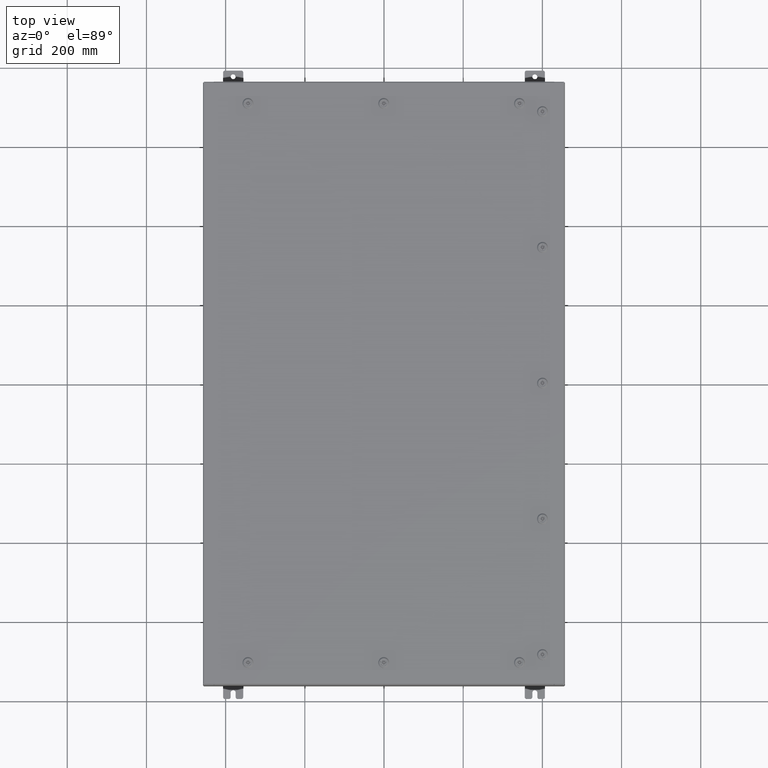
[diagram: clean part render]
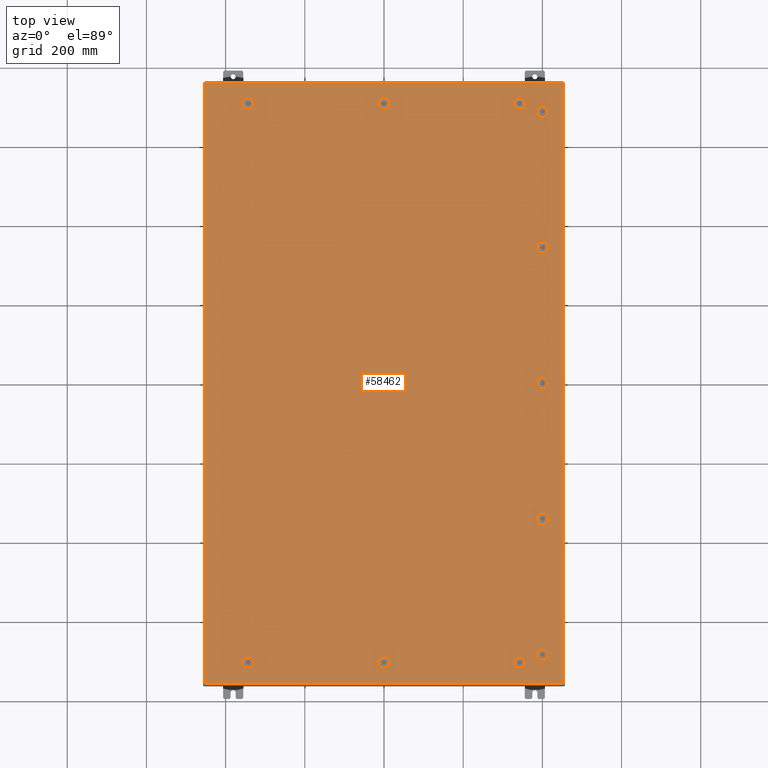
[diagram: same view with one face highlighted and labeled with its STEP entity id]
A machine part, top view. The second image highlights one B-rep face of the part: STEP entity #58462.
In plain terms, the highlighted planar face has unit normal (0, 0, -1).
Its self-contained STEP definition (entity closure, byte-faithful):
#141 = CARTESIAN_POINT ( 'NONE',  ( 13.49999999999998600, 27.78780000000000100, -9.426999614876453700E-014 ) ) ;
#516 = EDGE_CURVE ( 'NONE', #11564, #12385, #55682, .T. ) ;
#768 = CARTESIAN_POINT ( 'NONE',  ( 13.49999999999998600, 27.78780000000000100, -9.426999614876453700E-014 ) ) ;
#948 = DIRECTION ( 'NONE',  ( -0.0000000000000000000, -6.982962677686266700E-015, 1.000000000000000000 ) ) ;
#963 = LINE ( 'NONE', #50926, #13559 ) ;
#1364 = CARTESIAN_POINT ( 'NONE',  ( 17.84979999999999800, 29.84980000000001300, 1.946441695485787500E-015 ) ) ;
#1552 = ORIENTED_EDGE ( 'NONE', *, *, #1756, .F. ) ;
#1683 = ORIENTED_EDGE ( 'NONE', *, *, #5998, .F. ) ;
#1756 = EDGE_CURVE ( 'NONE', #5480, #24326, #29669, .T. ) ;
#1811 = ORIENTED_EDGE ( 'NONE', *, *, #65121, .F. ) ;
#1848 = EDGE_CURVE ( 'NONE', #45824, #26186, #26349, .T. ) ;
#2200 = DIRECTION ( 'NONE',  ( 1.000000000000000000, -0.0000000000000000000, -0.0000000000000000000 ) ) ;
#2365 = CIRCLE ( 'NONE', #53289, 0.4424999999999961700 ) ;
#2536 = CARTESIAN_POINT ( 'NONE',  ( 0.4425000000000125500, 27.78780000000000100, 0.0000000000000000000 ) ) ;
#2543 = VERTEX_POINT ( 'NONE', #41104 ) ;
#2572 = ORIENTED_EDGE ( 'NONE', *, *, #31101, .F. ) ;
#2574 = AXIS2_PLACEMENT_3D ( 'NONE', #12482, #49832, #17851 ) ;
#2691 = CARTESIAN_POINT ( 'NONE',  ( -13.30054762473209400, 28.18279999999999300, 0.0000000000000000000 ) ) ;
#3348 = CARTESIAN_POINT ( 'NONE',  ( 15.39280000000001900, 13.69945237526790600, 0.0000000000000000000 ) ) ;
#3615 = VERTEX_POINT ( 'NONE', #30843 ) ;
#3694 = CARTESIAN_POINT ( 'NONE',  ( -13.30054762473210200, 27.39280000000000500, 0.0000000000000000000 ) ) ;
#3870 = DIRECTION ( 'NONE',  ( -1.000000000000000000, 0.0000000000000000000, 6.982962677686269100E-015 ) ) ;
#4245 = CARTESIAN_POINT ( 'NONE',  ( 15.39280000000002200, -27.19945237526790300, -1.899327607900008200E-013 ) ) ;
#4270 = DIRECTION ( 'NONE',  ( 0.0000000000000000000, 0.0000000000000000000, 1.000000000000000000 ) ) ;
#4353 = VERTEX_POINT ( 'NONE', #41977 ) ;
#4393 = EDGE_CURVE ( 'NONE', #55439, #43079, #9466, .T. ) ;
#4452 = ORIENTED_EDGE ( 'NONE', *, *, #48904, .F. ) ;
#4513 = DIRECTION ( 'NONE',  ( 1.000000000000000000, 0.0000000000000000000, 0.0000000000000000000 ) ) ;
#4755 = VERTEX_POINT ( 'NONE', #66689 ) ;
#4907 = CARTESIAN_POINT ( 'NONE',  ( 16.18280000000000700, 27.19945237526789600, 0.0000000000000000000 ) ) ;
#5119 = ORIENTED_EDGE ( 'NONE', *, *, #37079, .F. ) ;
#5480 = VERTEX_POINT ( 'NONE', #5520 ) ;
#5487 = DIRECTION ( 'NONE',  ( -1.000000000000000000, 0.0000000000000000000, 6.982962677686270700E-015 ) ) ;
#5520 = CARTESIAN_POINT ( 'NONE',  ( 16.18280000000000700, 13.30054762473213300, 0.0000000000000000000 ) ) ;
#5542 = CARTESIAN_POINT ( 'NONE',  ( 13.30054762473210400, -27.39280000000001500, -1.564962406004356200E-013 ) ) ;
#5666 = LINE ( 'NONE', #16079, #32435 ) ;
#5983 = EDGE_CURVE ( 'NONE', #21966, #4353, #37830, .T. ) ;
#5988 = EDGE_LOOP ( 'NONE', ( #1552, #20741, #18476, #46985 ) ) ;
#5998 = EDGE_CURVE ( 'NONE', #58013, #48141, #50376, .T. ) ;
#6110 = DIRECTION ( 'NONE',  ( -1.000000000000000000, 0.0000000000000000000, 6.982962677686269100E-015 ) ) ;
#6353 = VECTOR ( 'NONE', #9092, 39.37007874015748100 ) ;
#6401 = DIRECTION ( 'NONE',  ( 5.478697338139280000E-015, 1.000000000000000000, 6.982962677686382700E-015 ) ) ;
#6536 = CARTESIAN_POINT ( 'NONE',  ( 16.18280000000000700, 27.19945237526789600, 0.0000000000000000000 ) ) ;
#6731 = ORIENTED_EDGE ( 'NONE', *, *, #16968, .F. ) ;
#7058 = EDGE_CURVE ( 'NONE', #29871, #23255, #963, .T. ) ;
#7089 = CIRCLE ( 'NONE', #50129, 0.4424999999999961700 ) ;
#7203 = VECTOR ( 'NONE', #62915, 39.37007874015748100 ) ;
#7344 = LINE ( 'NONE', #5542, #34072 ) ;
#7467 = ORIENTED_EDGE ( 'NONE', *, *, #5983, .F. ) ;
#7622 = ORIENTED_EDGE ( 'NONE', *, *, #34510, .F. ) ;
#7754 = ORIENTED_EDGE ( 'NONE', *, *, #52083, .F. ) ;
#7907 = ORIENTED_EDGE ( 'NONE', *, *, #29726, .F. ) ;
#8002 = VERTEX_POINT ( 'NONE', #68835 ) ;
#8090 = CIRCLE ( 'NONE', #32320, 0.4424999999999983400 ) ;
#8276 = LINE ( 'NONE', #4245, #63506 ) ;
#8304 = DIRECTION ( 'NONE',  ( -6.982962677686266700E-015, -6.982962677686266700E-015, 1.000000000000000000 ) ) ;
#8493 = DIRECTION ( 'NONE',  ( -0.0000000000000000000, -6.982962677686266700E-015, 1.000000000000000000 ) ) ;
#8583 = VECTOR ( 'NONE', #40750, 39.37007874015748100 ) ;
#8667 = VERTEX_POINT ( 'NONE', #30870 ) ;
#9092 = DIRECTION ( 'NONE',  ( 1.000000000000000000, -0.0000000000000000000, -0.0000000000000000000 ) ) ;
#9103 = VECTOR ( 'NONE', #55366, 39.37007874015748100 ) ;
#9451 = CARTESIAN_POINT ( 'NONE',  ( 16.18280000000000700, -13.69945237526790100, -9.566276464123617700E-014 ) ) ;
#9466 = CIRCLE ( 'NONE', #51945, 0.4424999999999961700 ) ;
#9536 = EDGE_LOOP ( 'NONE', ( #41189, #68259, #15319, #29320 ) ) ;
#9702 = DIRECTION ( 'NONE',  ( 0.0000000000000000000, 0.0000000000000000000, 1.000000000000000000 ) ) ;
#9759 = CARTESIAN_POINT ( 'NONE',  ( -13.69945237526786900, -28.18280000000001100, 0.0000000000000000000 ) ) ;
#9873 = VECTOR ( 'NONE', #58131, 39.37007874015748100 ) ;
#10257 = DIRECTION ( 'NONE',  ( -0.0000000000000000000, -6.982962677686266700E-015, 1.000000000000000000 ) ) ;
#10384 = LINE ( 'NONE', #66224, #65506 ) ;
#10425 = ORIENTED_EDGE ( 'NONE', *, *, #19007, .F. ) ;
#10584 = FACE_OUTER_BOUND ( 'NONE', #40385, .T. ) ;
#10681 = CARTESIAN_POINT ( 'NONE',  ( 1.529834876451987200E-014, 27.78780000000000100, 0.0000000000000000000 ) ) ;
#10709 = VECTOR ( 'NONE', #23056, 39.37007874015748100 ) ;
#10911 = DIRECTION ( 'NONE',  ( 0.0000000000000000000, 0.0000000000000000000, 1.000000000000000000 ) ) ;
#10937 = VERTEX_POINT ( 'NONE', #48306 ) ;
#10951 = DIRECTION ( 'NONE',  ( 0.0000000000000000000, 0.0000000000000000000, 1.000000000000000000 ) ) ;
#11117 = CARTESIAN_POINT ( 'NONE',  ( 13.49999999999998600, -27.78780000000000800, -1.578617423656501800E-013 ) ) ;
#11130 = DIRECTION ( 'NONE',  ( -1.000000000000000000, 1.095739467627832000E-014, 0.0000000000000000000 ) ) ;
#11564 = VERTEX_POINT ( 'NONE', #34966 ) ;
#11601 = CARTESIAN_POINT ( 'NONE',  ( -13.69945237526786900, 27.39280000000000500, 0.0000000000000000000 ) ) ;
#11889 = VERTEX_POINT ( 'NONE', #26563 ) ;
#11904 = CARTESIAN_POINT ( 'NONE',  ( -0.1994523752678657400, -28.18280000000000400, 0.0000000000000000000 ) ) ;
#11960 = DIRECTION ( 'NONE',  ( -5.478697338139280000E-015, 1.000000000000000000, -0.0000000000000000000 ) ) ;
#11962 = EDGE_CURVE ( 'NONE', #45411, #24345, #16677, .T. ) ;
#12094 = CIRCLE ( 'NONE', #52474, 0.4424999999999972800 ) ;
#12129 = VECTOR ( 'NONE', #39305, 39.37007874015748100 ) ;
#12228 = FACE_BOUND ( 'NONE', #42749, .T. ) ;
#12385 = VERTEX_POINT ( 'NONE', #16155 ) ;
#12482 = CARTESIAN_POINT ( 'NONE',  ( 15.78780000000001500, -27.00000000000001400, -1.885399922975292500E-013 ) ) ;
#12508 = PLANE ( 'NONE',  #40950 ) ;
#12927 = ORIENTED_EDGE ( 'NONE', *, *, #4393, .F. ) ;
#13056 = ORIENTED_EDGE ( 'NONE', *, *, #26906, .T. ) ;
#13559 = VECTOR ( 'NONE', #13590, 39.37007874015748100 ) ;
#13590 = DIRECTION ( 'NONE',  ( 1.000000000000000000, 0.0000000000000000000, -6.982962677686306200E-015 ) ) ;
#13934 = FACE_BOUND ( 'NONE', #22872, .T. ) ;
#13943 = EDGE_CURVE ( 'NONE', #27118, #55439, #7344, .T. ) ;
#14040 = CARTESIAN_POINT ( 'NONE',  ( 13.69945237526786900, 27.39280000000000500, -9.566276464123603800E-014 ) ) ;
#14188 = CARTESIAN_POINT ( 'NONE',  ( 15.78780000000000600, 1.529834876451990400E-014, 0.0000000000000000000 ) ) ;
#14227 = CARTESIAN_POINT ( 'NONE',  ( 13.49999999999998600, -27.78780000000000800, -1.578617423656501800E-013 ) ) ;
#14671 = AXIS2_PLACEMENT_3D ( 'NONE', #40505, #8493, #45886 ) ;
#14789 = EDGE_CURVE ( 'NONE', #33963, #29672, #67546, .T. ) ;
#15261 = CARTESIAN_POINT ( 'NONE',  ( -13.49999999999998600, -27.78780000000001500, -2.521317385144146900E-013 ) ) ;
#15319 = ORIENTED_EDGE ( 'NONE', *, *, #31916, .F. ) ;
#15335 = VECTOR ( 'NONE', #38542, 39.37007874015748100 ) ;
#15464 = DIRECTION ( 'NONE',  ( 0.0000000000000000000, 0.0000000000000000000, 1.000000000000000000 ) ) ;
#15504 = VERTEX_POINT ( 'NONE', #28800 ) ;
#15576 = CARTESIAN_POINT ( 'NONE',  ( -13.69945237526787100, -27.39280000000001900, -2.493734682567286400E-013 ) ) ;
#15599 = DIRECTION ( 'NONE',  ( -0.0000000000000000000, -6.982962677686266700E-015, 1.000000000000000000 ) ) ;
#15616 = ORIENTED_EDGE ( 'NONE', *, *, #57390, .F. ) ;
#15647 = CARTESIAN_POINT ( 'NONE',  ( -13.49999999999998600, 27.78780000000000100, 0.0000000000000000000 ) ) ;
#15701 = AXIS2_PLACEMENT_3D ( 'NONE', #16127, #53522, #21512 ) ;
#16013 = DIRECTION ( 'NONE',  ( 1.000000000000000000, 0.0000000000000000000, 0.0000000000000000000 ) ) ;
#16079 = CARTESIAN_POINT ( 'NONE',  ( 0.1994523752679067700, -28.18279999999999300, -2.548900087721007400E-013 ) ) ;
#16127 = CARTESIAN_POINT ( 'NONE',  ( 15.78780000000001000, 13.50000000000001800, 0.0000000000000000000 ) ) ;
#16155 = CARTESIAN_POINT ( 'NONE',  ( 17.84979999999999800, -29.84979999999998800, -2.048885995248197400E-016 ) ) ;
#16490 = DIRECTION ( 'NONE',  ( 1.000000000000000000, 0.0000000000000000000, 6.982962677686304600E-015 ) ) ;
#16677 = LINE ( 'NONE', #64616, #43417 ) ;
#16761 = LINE ( 'NONE', #64987, #59421 ) ;
#16968 = EDGE_CURVE ( 'NONE', #17480, #45411, #25579, .T. ) ;
#17101 = VECTOR ( 'NONE', #20512, 39.37007874015748100 ) ;
#17480 = VERTEX_POINT ( 'NONE', #40299 ) ;
#17503 = CARTESIAN_POINT ( 'NONE',  ( -13.69945237526786700, 28.18280000000000000, 0.0000000000000000000 ) ) ;
#17644 = CARTESIAN_POINT ( 'NONE',  ( -13.05749999999999000, -27.78780000000001500, -2.521317385144146900E-013 ) ) ;
#17851 = DIRECTION ( 'NONE',  ( 0.0000000000000000000, 1.000000000000000000, 6.982962677686270700E-015 ) ) ;
#17861 = VERTEX_POINT ( 'NONE', #57259 ) ;
#17873 = DIRECTION ( 'NONE',  ( 0.0000000000000000000, 0.0000000000000000000, -1.000000000000000000 ) ) ;
#18035 = EDGE_CURVE ( 'NONE', #48141, #41227, #21428, .T. ) ;
#18104 = LINE ( 'NONE', #36230, #7203 ) ;
#18135 = ORIENTED_EDGE ( 'NONE', *, *, #18035, .F. ) ;
#18163 = CARTESIAN_POINT ( 'NONE',  ( 13.69945237526787100, -27.39280000000001500, 0.0000000000000000000 ) ) ;
#18476 = ORIENTED_EDGE ( 'NONE', *, *, #29275, .F. ) ;
#18873 = AXIS2_PLACEMENT_3D ( 'NONE', #47456, #15464, #52850 ) ;
#19007 = EDGE_CURVE ( 'NONE', #23255, #3615, #7089, .T. ) ;
#19504 = EDGE_CURVE ( 'NONE', #27933, #11564, #32943, .T. ) ;
#19548 = DIRECTION ( 'NONE',  ( 1.000000000000000000, 0.0000000000000000000, 0.0000000000000000000 ) ) ;
#19585 = DIRECTION ( 'NONE',  ( 1.000000000000000000, 0.0000000000000000000, 6.982962677686270700E-015 ) ) ;
#19724 = EDGE_CURVE ( 'NONE', #30430, #43752, #12094, .T. ) ;
#20014 = CARTESIAN_POINT ( 'NONE',  ( -13.49999999999998600, -27.78780000000001500, -2.521317385144146900E-013 ) ) ;
#20397 = DIRECTION ( 'NONE',  ( -1.095739467627836100E-014, -1.000000000000000000, 0.0000000000000000000 ) ) ;
#20512 = DIRECTION ( 'NONE',  ( 0.0000000000000000000, -1.000000000000000000, 0.0000000000000000000 ) ) ;
#20654 = AXIS2_PLACEMENT_3D ( 'NONE', #20826, #58190, #26162 ) ;
#20662 = DIRECTION ( 'NONE',  ( 0.0000000000000000000, 1.000000000000000000, 6.982962677686270700E-015 ) ) ;
#20720 = EDGE_CURVE ( 'NONE', #4353, #30430, #10384, .T. ) ;
#20741 = ORIENTED_EDGE ( 'NONE', *, *, #52058, .F. ) ;
#20826 = CARTESIAN_POINT ( 'NONE',  ( -13.49999999999998600, -27.78780000000001500, -2.521317385144146900E-013 ) ) ;
#20997 = LINE ( 'NONE', #43801, #35145 ) ;
#21019 = DIRECTION ( 'NONE',  ( 1.000000000000000000, 0.0000000000000000000, 0.0000000000000000000 ) ) ;
#21043 = VERTEX_POINT ( 'NONE', #9451 ) ;
#21055 = EDGE_CURVE ( 'NONE', #24326, #8667, #25376, .T. ) ;
#21090 = EDGE_LOOP ( 'NONE', ( #57922, #44069, #10425, #53357, #15616 ) ) ;
#21371 = EDGE_CURVE ( 'NONE', #4755, #56365, #59635, .T. ) ;
#21401 = CIRCLE ( 'NONE', #27008, 0.4424999999999983400 ) ;
#21428 = CIRCLE ( 'NONE', #20654, 0.4424999999999983400 ) ;
#21477 = DIRECTION ( 'NONE',  ( -1.000000000000000000, -0.0000000000000000000, -0.0000000000000000000 ) ) ;
#21512 = DIRECTION ( 'NONE',  ( 1.000000000000000000, 0.0000000000000000000, 0.0000000000000000000 ) ) ;
#21662 = ORIENTED_EDGE ( 'NONE', *, *, #62904, .F. ) ;
#21732 = CARTESIAN_POINT ( 'NONE',  ( 15.78780000000001000, 27.00000000000001400, 0.0000000000000000000 ) ) ;
#21844 = ORIENTED_EDGE ( 'NONE', *, *, #20720, .F. ) ;
#21871 = CARTESIAN_POINT ( 'NONE',  ( 17.84979999999999800, -29.84979999999998800, -2.048885995248197400E-016 ) ) ;
#21966 = VERTEX_POINT ( 'NONE', #48768 ) ;
#22612 = VERTEX_POINT ( 'NONE', #11904 ) ;
#22764 = ORIENTED_EDGE ( 'NONE', *, *, #53057, .F. ) ;
#22872 = EDGE_LOOP ( 'NONE', ( #21662, #7754, #61754, #40533 ) ) ;
#23056 = DIRECTION ( 'NONE',  ( 1.095739467627838000E-014, -1.000000000000000000, -6.982962677686269100E-015 ) ) ;
#23255 = VERTEX_POINT ( 'NONE', #14040 ) ;
#23379 = VECTOR ( 'NONE', #59286, 39.37007874015748100 ) ;
#23537 = EDGE_CURVE ( 'NONE', #43079, #45280, #24897, .T. ) ;
#23655 = CARTESIAN_POINT ( 'NONE',  ( 15.78780000000001300, -13.50000000000001800, -9.426999614876466400E-014 ) ) ;
#23781 = VERTEX_POINT ( 'NONE', #56101 ) ;
#24035 = CIRCLE ( 'NONE', #45671, 0.4424999999999983400 ) ;
#24190 = AXIS2_PLACEMENT_3D ( 'NONE', #20014, #57374, #25346 ) ;
#24258 = ORIENTED_EDGE ( 'NONE', *, *, #37177, .F. ) ;
#24326 = VERTEX_POINT ( 'NONE', #28674 ) ;
#24345 = VERTEX_POINT ( 'NONE', #17503 ) ;
#24419 = LINE ( 'NONE', #6536, #51154 ) ;
#24759 = FACE_BOUND ( 'NONE', #44302, .T. ) ;
#24897 = LINE ( 'NONE', #59203, #65851 ) ;
#25346 = DIRECTION ( 'NONE',  ( 0.0000000000000000000, 1.000000000000000000, 6.982962677686270700E-015 ) ) ;
#25376 = CIRCLE ( 'NONE', #50656, 0.4424999999999961700 ) ;
#25416 = CARTESIAN_POINT ( 'NONE',  ( -13.30054762473210400, -27.39280000000001900, -2.493734682567286900E-013 ) ) ;
#25579 = CIRCLE ( 'NONE', #38890, 0.4424999999999983400 ) ;
#25631 = EDGE_LOOP ( 'NONE', ( #47943, #65378, #38879, #55371 ) ) ;
#25665 = EDGE_LOOP ( 'NONE', ( #35763, #60316, #22764, #36299 ) ) ;
#25756 = CARTESIAN_POINT ( 'NONE',  ( -0.1994523752678689600, -27.39280000000000500, -2.493734682567286400E-013 ) ) ;
#26097 = CARTESIAN_POINT ( 'NONE',  ( -13.30054762473209500, -28.18280000000000700, -2.548900087721007400E-013 ) ) ;
#26162 = DIRECTION ( 'NONE',  ( 0.0000000000000000000, 1.000000000000000000, 6.982962677686270700E-015 ) ) ;
#26186 = VERTEX_POINT ( 'NONE', #52762 ) ;
#26349 = LINE ( 'NONE', #55243, #12129 ) ;
#26440 = FACE_BOUND ( 'NONE', #45830, .T. ) ;
#26563 = CARTESIAN_POINT ( 'NONE',  ( 15.39280000000001900, -26.80054762473213300, 0.0000000000000000000 ) ) ;
#26799 = ORIENTED_EDGE ( 'NONE', *, *, #13943, .F. ) ;
#26858 = AXIS2_PLACEMENT_3D ( 'NONE', #15261, #52654, #20662 ) ;
#26906 = EDGE_CURVE ( 'NONE', #52280, #27933, #47218, .T. ) ;
#27008 = AXIS2_PLACEMENT_3D ( 'NONE', #42235, #10257, #47595 ) ;
#27088 = DIRECTION ( 'NONE',  ( 1.000000000000000000, 0.0000000000000000000, 0.0000000000000000000 ) ) ;
#27118 = VERTEX_POINT ( 'NONE', #18163 ) ;
#27145 = CARTESIAN_POINT ( 'NONE',  ( 15.39280000000002100, -13.69945237526790600, -9.566276464123621500E-014 ) ) ;
#27169 = DIRECTION ( 'NONE',  ( 1.000000000000000000, -1.095739467627832000E-014, 6.982962677686152300E-015 ) ) ;
#27375 = LINE ( 'NONE', #57772, #66686 ) ;
#27561 = VERTEX_POINT ( 'NONE', #17644 ) ;
#27678 = CIRCLE ( 'NONE', #43356, 0.4424999999999961700 ) ;
#27770 = EDGE_CURVE ( 'NONE', #36718, #11889, #35539, .T. ) ;
#27809 = CARTESIAN_POINT ( 'NONE',  ( 0.1994523752678995500, -27.39280000000000500, -2.493734682567286900E-013 ) ) ;
#27933 = VERTEX_POINT ( 'NONE', #57121 ) ;
#28613 = CARTESIAN_POINT ( 'NONE',  ( 15.78780000000001300, -13.50000000000001800, -9.426999614876466400E-014 ) ) ;
#28674 = CARTESIAN_POINT ( 'NONE',  ( 16.18280000000000700, 13.69945237526790100, 0.0000000000000000000 ) ) ;
#28800 = CARTESIAN_POINT ( 'NONE',  ( -13.30054762473209500, -28.18280000000000700, -2.548900087721007400E-013 ) ) ;
#28824 = CARTESIAN_POINT ( 'NONE',  ( -17.84979999999999800, -29.84979999999999500, 1.946441695485787500E-015 ) ) ;
#28919 = VECTOR ( 'NONE', #60889, 39.37007874015748100 ) ;
#28985 = ORIENTED_EDGE ( 'NONE', *, *, #19724, .F. ) ;
#29006 = DIRECTION ( 'NONE',  ( 0.0000000000000000000, 1.000000000000000000, 6.982962677686270700E-015 ) ) ;
#29039 = CARTESIAN_POINT ( 'NONE',  ( 0.1994523752679054600, -28.18279999999999300, -2.548900087721007400E-013 ) ) ;
#29063 = CARTESIAN_POINT ( 'NONE',  ( 0.4425000000000125500, -27.78780000000000100, -2.521317385144146900E-013 ) ) ;
#29275 = EDGE_CURVE ( 'NONE', #8667, #31118, #37006, .T. ) ;
#29320 = ORIENTED_EDGE ( 'NONE', *, *, #66745, .F. ) ;
#29431 = EDGE_CURVE ( 'NONE', #26186, #55943, #47862, .T. ) ;
#29598 = ORIENTED_EDGE ( 'NONE', *, *, #56286, .F. ) ;
#29669 = LINE ( 'NONE', #38626, #43875 ) ;
#29672 = VERTEX_POINT ( 'NONE', #27145 ) ;
#29726 = EDGE_CURVE ( 'NONE', #56365, #22612, #37789, .T. ) ;
#29865 = CARTESIAN_POINT ( 'NONE',  ( 13.30054762473209400, 28.18279999999999300, -9.287722765629296100E-014 ) ) ;
#29871 = VERTEX_POINT ( 'NONE', #49289 ) ;
#30119 = CARTESIAN_POINT ( 'NONE',  ( 15.78780000000001000, 27.00000000000001400, 0.0000000000000000000 ) ) ;
#30313 = ORIENTED_EDGE ( 'NONE', *, *, #11962, .F. ) ;
#30430 = VERTEX_POINT ( 'NONE', #68779 ) ;
#30569 = CIRCLE ( 'NONE', #48481, 0.4424999999999983400 ) ;
#30843 = CARTESIAN_POINT ( 'NONE',  ( 13.94249999999998300, 27.78780000000000100, -9.735995713364067600E-014 ) ) ;
#30870 = CARTESIAN_POINT ( 'NONE',  ( 15.39280000000001900, 13.69945237526790600, 0.0000000000000000000 ) ) ;
#31101 = EDGE_CURVE ( 'NONE', #24345, #59545, #27678, .T. ) ;
#31118 = VERTEX_POINT ( 'NONE', #36869 ) ;
#31415 = EDGE_CURVE ( 'NONE', #58949, #27118, #60299, .T. ) ;
#31916 = EDGE_CURVE ( 'NONE', #21043, #50128, #16761, .T. ) ;
#32191 = DIRECTION ( 'NONE',  ( -1.000000000000000000, -0.0000000000000000000, -6.982962677686265900E-015 ) ) ;
#32320 = AXIS2_PLACEMENT_3D ( 'NONE', #14188, #51539, #19548 ) ;
#32435 = VECTOR ( 'NONE', #42700, 39.37007874015748100 ) ;
#32890 = CIRCLE ( 'NONE', #26858, 0.4424999999999983400 ) ;
#32930 = CARTESIAN_POINT ( 'NONE',  ( 1.529834876451987200E-014, -27.78780000000000100, -2.521317385144146900E-013 ) ) ;
#32943 = LINE ( 'NONE', #36351, #17101 ) ;
#33255 = CARTESIAN_POINT ( 'NONE',  ( 0.0000000000000000000, 0.0000000000000000000, 0.0000000000000000000 ) ) ;
#33506 = AXIS2_PLACEMENT_3D ( 'NONE', #21732, #59129, #27088 ) ;
#33754 = ORIENTED_EDGE ( 'NONE', *, *, #65802, .F. ) ;
#33821 = EDGE_CURVE ( 'NONE', #17861, #66527, #43362, .T. ) ;
#33963 = VERTEX_POINT ( 'NONE', #39289 ) ;
#33980 = DIRECTION ( 'NONE',  ( 0.0000000000000000000, 1.000000000000000000, 6.982962677686269100E-015 ) ) ;
#34072 = VECTOR ( 'NONE', #32191, 39.37007874015748100 ) ;
#34479 = AXIS2_PLACEMENT_3D ( 'NONE', #42862, #10911, #48246 ) ;
#34510 = EDGE_CURVE ( 'NONE', #22612, #50641, #5666, .T. ) ;
#34630 = VECTOR ( 'NONE', #21477, 39.37007874015748100 ) ;
#34966 = CARTESIAN_POINT ( 'NONE',  ( -17.84979999999999800, -29.84979999999999500, 1.946441695485787500E-015 ) ) ;
#35145 = VECTOR ( 'NONE', #6401, 39.37007874015748100 ) ;
#35218 = DIRECTION ( 'NONE',  ( -1.000000000000000000, -1.095739467627832000E-014, 6.982962677686228800E-015 ) ) ;
#35477 = DIRECTION ( 'NONE',  ( 1.000000000000000000, 0.0000000000000000000, 0.0000000000000000000 ) ) ;
#35539 = CIRCLE ( 'NONE', #14671, 0.4424999999999983400 ) ;
#35763 = ORIENTED_EDGE ( 'NONE', *, *, #43350, .F. ) ;
#35869 = DIRECTION ( 'NONE',  ( 6.982962677686266700E-015, -0.0000000000000000000, 1.000000000000000000 ) ) ;
#36129 = CARTESIAN_POINT ( 'NONE',  ( 16.18280000000001100, -13.30054762473213300, -9.287722765629316300E-014 ) ) ;
#36194 = VECTOR ( 'NONE', #37505, 39.37007874015748100 ) ;
#36209 = EDGE_CURVE ( 'NONE', #65838, #2543, #2365, .T. ) ;
#36230 = CARTESIAN_POINT ( 'NONE',  ( 0.1994523752679067700, 28.18279999999999300, 0.0000000000000000000 ) ) ;
#36257 = DIRECTION ( 'NONE',  ( 1.095739467627844000E-014, -1.000000000000000000, -6.982962677686306200E-015 ) ) ;
#36288 = CARTESIAN_POINT ( 'NONE',  ( 15.78780000000001000, 13.50000000000001800, 0.0000000000000000000 ) ) ;
#36299 = ORIENTED_EDGE ( 'NONE', *, *, #33821, .F. ) ;
#36351 = CARTESIAN_POINT ( 'NONE',  ( -17.84979999999998100, 29.84980000000000500, 4.166068190338001500E-015 ) ) ;
#36448 = CIRCLE ( 'NONE', #67720, 0.4424999999999983400 ) ;
#36541 = DIRECTION ( 'NONE',  ( 0.0000000000000000000, 0.0000000000000000000, 1.000000000000000000 ) ) ;
#36718 = VERTEX_POINT ( 'NONE', #67158 ) ;
#36869 = CARTESIAN_POINT ( 'NONE',  ( 15.39280000000001400, 13.30054762473213400, 0.0000000000000000000 ) ) ;
#37006 = LINE ( 'NONE', #3348, #8583 ) ;
#37079 = EDGE_CURVE ( 'NONE', #27561, #58013, #55804, .T. ) ;
#37164 = EDGE_CURVE ( 'NONE', #41227, #15504, #38221, .T. ) ;
#37177 = EDGE_CURVE ( 'NONE', #59825, #4755, #24035, .T. ) ;
#37505 = DIRECTION ( 'NONE',  ( -1.000000000000000000, 0.0000000000000000000, 7.785697190086082800E-029 ) ) ;
#37523 = DIRECTION ( 'NONE',  ( 6.982962677686266700E-015, -0.0000000000000000000, 1.000000000000000000 ) ) ;
#37789 = CIRCLE ( 'NONE', #43763, 0.4424999999999983400 ) ;
#37830 = CIRCLE ( 'NONE', #34479, 0.4424999999999969000 ) ;
#38075 = EDGE_CURVE ( 'NONE', #64496, #10937, #52438, .T. ) ;
#38155 = DIRECTION ( 'NONE',  ( 6.982962677686266700E-015, -0.0000000000000000000, 1.000000000000000000 ) ) ;
#38187 = EDGE_CURVE ( 'NONE', #59545, #47877, #49005, .T. ) ;
#38221 = LINE ( 'NONE', #26097, #9873 ) ;
#38318 = DIRECTION ( 'NONE',  ( 5.478697338139220100E-015, 1.000000000000000000, 6.982962677686228100E-015 ) ) ;
#38333 = DIRECTION ( 'NONE',  ( 0.0000000000000000000, 1.000000000000000000, 6.982962677686270700E-015 ) ) ;
#38542 = DIRECTION ( 'NONE',  ( -1.000000000000000000, 0.0000000000000000000, 7.785697190086061500E-029 ) ) ;
#38626 = CARTESIAN_POINT ( 'NONE',  ( 16.18280000000000700, 13.69945237526790100, 0.0000000000000000000 ) ) ;
#38879 = ORIENTED_EDGE ( 'NONE', *, *, #44991, .F. ) ;
#38890 = AXIS2_PLACEMENT_3D ( 'NONE', #42908, #10951, #48284 ) ;
#38928 = FACE_BOUND ( 'NONE', #64098, .T. ) ;
#39071 = EDGE_CURVE ( 'NONE', #45280, #58949, #36448, .T. ) ;
#39140 = CIRCLE ( 'NONE', #52028, 0.4424999999999961700 ) ;
#39169 = ORIENTED_EDGE ( 'NONE', *, *, #54347, .T. ) ;
#39211 = CARTESIAN_POINT ( 'NONE',  ( 15.39280000000001900, 27.19945237526790300, 0.0000000000000000000 ) ) ;
#39289 = CARTESIAN_POINT ( 'NONE',  ( 15.39280000000001500, -13.30054762473213400, 0.0000000000000000000 ) ) ;
#39305 = DIRECTION ( 'NONE',  ( -5.478697338139235000E-015, 1.000000000000000000, -0.0000000000000000000 ) ) ;
#40295 = CARTESIAN_POINT ( 'NONE',  ( 13.49999999999998600, -27.78780000000000800, -1.578617423656501800E-013 ) ) ;
#40299 = CARTESIAN_POINT ( 'NONE',  ( -13.05749999999998900, 27.78780000000000100, 0.0000000000000000000 ) ) ;
#40385 = EDGE_LOOP ( 'NONE', ( #63051, #39169, #13056, #53486 ) ) ;
#40505 = CARTESIAN_POINT ( 'NONE',  ( 15.78780000000001500, -27.00000000000001400, -1.885399922975292500E-013 ) ) ;
#40533 = ORIENTED_EDGE ( 'NONE', *, *, #36209, .F. ) ;
#40625 = FACE_BOUND ( 'NONE', #25631, .T. ) ;
#40750 = DIRECTION ( 'NONE',  ( -1.095739467627838000E-014, -1.000000000000000000, 0.0000000000000000000 ) ) ;
#40924 = CIRCLE ( 'NONE', #18873, 0.4424999999999983400 ) ;
#40950 = AXIS2_PLACEMENT_3D ( 'NONE', #33255, #17873, #55253 ) ;
#41104 = CARTESIAN_POINT ( 'NONE',  ( 15.39280000000001900, 27.19945237526790300, 0.0000000000000000000 ) ) ;
#41189 = ORIENTED_EDGE ( 'NONE', *, *, #14789, .F. ) ;
#41227 = VERTEX_POINT ( 'NONE', #9759 ) ;
#41699 = DIRECTION ( 'NONE',  ( 1.000000000000000000, 0.0000000000000000000, 0.0000000000000000000 ) ) ;
#41703 = CARTESIAN_POINT ( 'NONE',  ( 1.529834876451987200E-014, 27.78780000000000100, 0.0000000000000000000 ) ) ;
#41977 = CARTESIAN_POINT ( 'NONE',  ( -0.1994523752678689600, 27.39280000000000500, 0.0000000000000000000 ) ) ;
#42235 = CARTESIAN_POINT ( 'NONE',  ( 1.529834876451987200E-014, -27.78780000000000100, -2.521317385144146900E-013 ) ) ;
#42418 = VERTEX_POINT ( 'NONE', #62432 ) ;
#42700 = DIRECTION ( 'NONE',  ( 1.000000000000000000, 1.095739467627836100E-014, 7.785697190085984100E-029 ) ) ;
#42749 = EDGE_LOOP ( 'NONE', ( #68460, #18135, #1683, #5119, #4452 ) ) ;
#42862 = CARTESIAN_POINT ( 'NONE',  ( 1.529834876451987200E-014, 27.78780000000000100, 0.0000000000000000000 ) ) ;
#42908 = CARTESIAN_POINT ( 'NONE',  ( -13.49999999999998600, 27.78780000000000100, 0.0000000000000000000 ) ) ;
#42977 = AXIS2_PLACEMENT_3D ( 'NONE', #41703, #9702, #47043 ) ;
#43079 = VERTEX_POINT ( 'NONE', #45145 ) ;
#43303 = VERTEX_POINT ( 'NONE', #68078 ) ;
#43350 = EDGE_CURVE ( 'NONE', #11889, #17861, #8276, .T. ) ;
#43356 = AXIS2_PLACEMENT_3D ( 'NONE', #15647, #53025, #21019 ) ;
#43362 = CIRCLE ( 'NONE', #2574, 0.4424999999999983400 ) ;
#43417 = VECTOR ( 'NONE', #11130, 39.37007874015748100 ) ;
#43631 = EDGE_CURVE ( 'NONE', #2543, #8002, #65941, .T. ) ;
#43752 = VERTEX_POINT ( 'NONE', #2536 ) ;
#43763 = AXIS2_PLACEMENT_3D ( 'NONE', #32930, #948, #38333 ) ;
#43801 = CARTESIAN_POINT ( 'NONE',  ( 16.18280000000001100, -27.19945237526789600, -1.899327607900007900E-013 ) ) ;
#43875 = VECTOR ( 'NONE', #54533, 39.37007874015748100 ) ;
#44069 = ORIENTED_EDGE ( 'NONE', *, *, #45608, .F. ) ;
#44302 = EDGE_LOOP ( 'NONE', ( #21844, #7467, #29598, #1811, #28985 ) ) ;
#44955 = ORIENTED_EDGE ( 'NONE', *, *, #31415, .F. ) ;
#44991 = EDGE_CURVE ( 'NONE', #55943, #42418, #27375, .T. ) ;
#44997 = CARTESIAN_POINT ( 'NONE',  ( -13.30054762473210200, 27.39280000000000500, 0.0000000000000000000 ) ) ;
#45145 = CARTESIAN_POINT ( 'NONE',  ( 13.30054762473209500, -28.18280000000000400, -1.620127811158077400E-013 ) ) ;
#45280 = VERTEX_POINT ( 'NONE', #66037 ) ;
#45411 = VERTEX_POINT ( 'NONE', #2691 ) ;
#45608 = EDGE_CURVE ( 'NONE', #3615, #64496, #59122, .T. ) ;
#45671 = AXIS2_PLACEMENT_3D ( 'NONE', #47576, #15599, #52981 ) ;
#45689 = DIRECTION ( 'NONE',  ( 1.000000000000000000, 0.0000000000000000000, 6.982962677686270700E-015 ) ) ;
#45824 = VERTEX_POINT ( 'NONE', #63908 ) ;
#45830 = EDGE_LOOP ( 'NONE', ( #26799, #44955, #60446, #46648, #12927 ) ) ;
#45886 = DIRECTION ( 'NONE',  ( 0.0000000000000000000, 1.000000000000000000, 6.982962677686270700E-015 ) ) ;
#46648 = ORIENTED_EDGE ( 'NONE', *, *, #23537, .F. ) ;
#46985 = ORIENTED_EDGE ( 'NONE', *, *, #21055, .F. ) ;
#47043 = DIRECTION ( 'NONE',  ( 1.000000000000000000, 0.0000000000000000000, 0.0000000000000000000 ) ) ;
#47218 = LINE ( 'NONE', #48294, #34630 ) ;
#47456 = CARTESIAN_POINT ( 'NONE',  ( -13.49999999999998600, 27.78780000000000100, 0.0000000000000000000 ) ) ;
#47525 = EDGE_CURVE ( 'NONE', #50128, #33963, #48092, .T. ) ;
#47576 = CARTESIAN_POINT ( 'NONE',  ( 1.529834876451987200E-014, -27.78780000000000100, -2.521317385144146900E-013 ) ) ;
#47595 = DIRECTION ( 'NONE',  ( 0.0000000000000000000, 1.000000000000000000, 6.982962677686270700E-015 ) ) ;
#47862 = CIRCLE ( 'NONE', #52323, 0.4424999999999983400 ) ;
#47877 = VERTEX_POINT ( 'NONE', #44997 ) ;
#47943 = ORIENTED_EDGE ( 'NONE', *, *, #1848, .F. ) ;
#47994 = DIRECTION ( 'NONE',  ( 0.0000000000000000000, 0.0000000000000000000, 1.000000000000000000 ) ) ;
#48092 = CIRCLE ( 'NONE', #68044, 0.4424999999999983400 ) ;
#48141 = VERTEX_POINT ( 'NONE', #15576 ) ;
#48246 = DIRECTION ( 'NONE',  ( 1.000000000000000000, 0.0000000000000000000, 0.0000000000000000000 ) ) ;
#48284 = DIRECTION ( 'NONE',  ( 1.000000000000000000, 0.0000000000000000000, 0.0000000000000000000 ) ) ;
#48294 = CARTESIAN_POINT ( 'NONE',  ( 17.84979999999999800, 29.84980000000001300, 1.946441695485787500E-015 ) ) ;
#48306 = CARTESIAN_POINT ( 'NONE',  ( 13.30054762473209400, 28.18279999999999300, -9.287722765629296100E-014 ) ) ;
#48451 = DIRECTION ( 'NONE',  ( -6.982962677686266700E-015, -6.982962677686266700E-015, 1.000000000000000000 ) ) ;
#48481 = AXIS2_PLACEMENT_3D ( 'NONE', #141, #37523, #5487 ) ;
#48593 = AXIS2_PLACEMENT_3D ( 'NONE', #67915, #35869, #3870 ) ;
#48768 = CARTESIAN_POINT ( 'NONE',  ( -0.1994523752678657400, 28.18280000000000000, 0.0000000000000000000 ) ) ;
#48904 = EDGE_CURVE ( 'NONE', #15504, #27561, #32890, .T. ) ;
#48956 = CARTESIAN_POINT ( 'NONE',  ( 16.18280000000001100, -27.19945237526789600, -1.899327607900007900E-013 ) ) ;
#49005 = LINE ( 'NONE', #3694, #6353 ) ;
#49289 = CARTESIAN_POINT ( 'NONE',  ( 13.30054762473210200, 27.39280000000000500, -9.287722765629301200E-014 ) ) ;
#49832 = DIRECTION ( 'NONE',  ( -0.0000000000000000000, -6.982962677686266700E-015, 1.000000000000000000 ) ) ;
#50128 = VERTEX_POINT ( 'NONE', #36129 ) ;
#50129 = AXIS2_PLACEMENT_3D ( 'NONE', #768, #38155, #6110 ) ;
#50376 = LINE ( 'NONE', #64178, #36194 ) ;
#50641 = VERTEX_POINT ( 'NONE', #29039 ) ;
#50656 = AXIS2_PLACEMENT_3D ( 'NONE', #36288, #4270, #41699 ) ;
#50926 = CARTESIAN_POINT ( 'NONE',  ( 13.30054762473210200, 27.39280000000000500, -9.287722765629301200E-014 ) ) ;
#51154 = VECTOR ( 'NONE', #11960, 39.37007874015748100 ) ;
#51539 = DIRECTION ( 'NONE',  ( 0.0000000000000000000, 0.0000000000000000000, 1.000000000000000000 ) ) ;
#51582 = DIRECTION ( 'NONE',  ( -6.982962677686266700E-015, -6.982962677686266700E-015, 1.000000000000000000 ) ) ;
#51945 = AXIS2_PLACEMENT_3D ( 'NONE', #11117, #48451, #16490 ) ;
#52028 = AXIS2_PLACEMENT_3D ( 'NONE', #28613, #66033, #33980 ) ;
#52058 = EDGE_CURVE ( 'NONE', #31118, #5480, #68744, .T. ) ;
#52083 = EDGE_CURVE ( 'NONE', #8002, #43303, #52845, .T. ) ;
#52280 = VERTEX_POINT ( 'NONE', #1364 ) ;
#52323 = AXIS2_PLACEMENT_3D ( 'NONE', #68580, #36541, #4513 ) ;
#52438 = LINE ( 'NONE', #29865, #64942 ) ;
#52474 = AXIS2_PLACEMENT_3D ( 'NONE', #10681, #47994, #16013 ) ;
#52654 = DIRECTION ( 'NONE',  ( -0.0000000000000000000, -6.982962677686266700E-015, 1.000000000000000000 ) ) ;
#52762 = CARTESIAN_POINT ( 'NONE',  ( 16.18280000000000000, 0.1994523752679009100, 0.0000000000000000000 ) ) ;
#52845 = CIRCLE ( 'NONE', #33506, 0.4424999999999961700 ) ;
#52850 = DIRECTION ( 'NONE',  ( 1.000000000000000000, 0.0000000000000000000, 0.0000000000000000000 ) ) ;
#52867 = ORIENTED_EDGE ( 'NONE', *, *, #21371, .F. ) ;
#52981 = DIRECTION ( 'NONE',  ( 0.0000000000000000000, 1.000000000000000000, 6.982962677686270700E-015 ) ) ;
#53025 = DIRECTION ( 'NONE',  ( 0.0000000000000000000, 0.0000000000000000000, 1.000000000000000000 ) ) ;
#53057 = EDGE_CURVE ( 'NONE', #66527, #36718, #20997, .T. ) ;
#53208 = FACE_BOUND ( 'NONE', #21090, .T. ) ;
#53289 = AXIS2_PLACEMENT_3D ( 'NONE', #30119, #67543, #35477 ) ;
#53357 = ORIENTED_EDGE ( 'NONE', *, *, #7058, .F. ) ;
#53486 = ORIENTED_EDGE ( 'NONE', *, *, #19504, .T. ) ;
#53522 = DIRECTION ( 'NONE',  ( 0.0000000000000000000, 0.0000000000000000000, 1.000000000000000000 ) ) ;
#53872 = CARTESIAN_POINT ( 'NONE',  ( 13.69945237526786700, 28.18280000000000000, 0.0000000000000000000 ) ) ;
#54238 = CARTESIAN_POINT ( 'NONE',  ( 13.94249999999998500, -27.78780000000000800, -1.547717813807740000E-013 ) ) ;
#54347 = EDGE_CURVE ( 'NONE', #12385, #52280, #62712, .T. ) ;
#54533 = DIRECTION ( 'NONE',  ( -5.478697338139220100E-015, 1.000000000000000000, -0.0000000000000000000 ) ) ;
#54846 = FACE_BOUND ( 'NONE', #5988, .T. ) ;
#55243 = CARTESIAN_POINT ( 'NONE',  ( 16.18280000000000000, 0.1994523752679009100, 0.0000000000000000000 ) ) ;
#55253 = DIRECTION ( 'NONE',  ( -1.000000000000000000, 0.0000000000000000000, -0.0000000000000000000 ) ) ;
#55366 = DIRECTION ( 'NONE',  ( -1.095739467627844000E-014, -1.000000000000000000, 0.0000000000000000000 ) ) ;
#55371 = ORIENTED_EDGE ( 'NONE', *, *, #29431, .F. ) ;
#55439 = VERTEX_POINT ( 'NONE', #59990 ) ;
#55682 = LINE ( 'NONE', #28824, #28919 ) ;
#55705 = EDGE_CURVE ( 'NONE', #42418, #45824, #8090, .T. ) ;
#55804 = CIRCLE ( 'NONE', #24190, 0.4424999999999983400 ) ;
#55943 = VERTEX_POINT ( 'NONE', #65953 ) ;
#56101 = CARTESIAN_POINT ( 'NONE',  ( 0.1994523752679054600, 28.18279999999999300, 0.0000000000000000000 ) ) ;
#56224 = AXIS2_PLACEMENT_3D ( 'NONE', #14227, #51582, #19585 ) ;
#56286 = EDGE_CURVE ( 'NONE', #23781, #21966, #18104, .T. ) ;
#56365 = VERTEX_POINT ( 'NONE', #25756 ) ;
#56536 = FACE_BOUND ( 'NONE', #9536, .T. ) ;
#57121 = CARTESIAN_POINT ( 'NONE',  ( -17.84979999999998100, 29.84980000000000500, 4.166068190338001500E-015 ) ) ;
#57259 = CARTESIAN_POINT ( 'NONE',  ( 15.39280000000002200, -27.19945237526790300, -1.899327607900007900E-013 ) ) ;
#57287 = EDGE_CURVE ( 'NONE', #50641, #59825, #21401, .T. ) ;
#57374 = DIRECTION ( 'NONE',  ( -0.0000000000000000000, -6.982962677686266700E-015, 1.000000000000000000 ) ) ;
#57390 = EDGE_CURVE ( 'NONE', #10937, #29871, #30569, .T. ) ;
#57772 = CARTESIAN_POINT ( 'NONE',  ( 15.39280000000001400, 0.1994523752679053800, 0.0000000000000000000 ) ) ;
#57922 = ORIENTED_EDGE ( 'NONE', *, *, #38075, .F. ) ;
#58013 = VERTEX_POINT ( 'NONE', #25416 ) ;
#58131 = DIRECTION ( 'NONE',  ( 1.000000000000000000, 1.095739467627832000E-014, 7.785697190085955000E-029 ) ) ;
#58190 = DIRECTION ( 'NONE',  ( -0.0000000000000000000, -6.982962677686266700E-015, 1.000000000000000000 ) ) ;
#58462 = ADVANCED_FACE ( 'NONE', ( #69106, #56536, #13934, #54846, #40625, #26440, #12228, #67422, #53208, #38928, #24759, #10584 ), #12508, .F. ) ;
#58638 = EDGE_LOOP ( 'NONE', ( #7622, #7907, #52867, #24258, #61830 ) ) ;
#58949 = VERTEX_POINT ( 'NONE', #54238 ) ;
#59122 = CIRCLE ( 'NONE', #48593, 0.4424999999999961700 ) ;
#59129 = DIRECTION ( 'NONE',  ( 0.0000000000000000000, 0.0000000000000000000, 1.000000000000000000 ) ) ;
#59203 = CARTESIAN_POINT ( 'NONE',  ( 13.30054762473209500, -28.18280000000000400, -1.620127811158077400E-013 ) ) ;
#59286 = DIRECTION ( 'NONE',  ( 0.0000000000000000000, 1.000000000000000000, 0.0000000000000000000 ) ) ;
#59421 = VECTOR ( 'NONE', #38318, 39.37007874015748100 ) ;
#59545 = VERTEX_POINT ( 'NONE', #11601 ) ;
#59635 = LINE ( 'NONE', #27809, #15335 ) ;
#59825 = VERTEX_POINT ( 'NONE', #29063 ) ;
#59990 = CARTESIAN_POINT ( 'NONE',  ( 13.30054762473210400, -27.39280000000001500, -1.564962406004356200E-013 ) ) ;
#60299 = CIRCLE ( 'NONE', #56224, 0.4424999999999983400 ) ;
#60316 = ORIENTED_EDGE ( 'NONE', *, *, #27770, .F. ) ;
#60446 = ORIENTED_EDGE ( 'NONE', *, *, #39071, .F. ) ;
#60889 = DIRECTION ( 'NONE',  ( 1.000000000000000000, -0.0000000000000000000, -0.0000000000000000000 ) ) ;
#61071 = DIRECTION ( 'NONE',  ( -0.0000000000000000000, -6.982962677686266700E-015, 1.000000000000000000 ) ) ;
#61754 = ORIENTED_EDGE ( 'NONE', *, *, #43631, .F. ) ;
#61830 = ORIENTED_EDGE ( 'NONE', *, *, #57287, .F. ) ;
#62432 = CARTESIAN_POINT ( 'NONE',  ( 15.39280000000001000, -0.1994523752678671000, 0.0000000000000000000 ) ) ;
#62712 = LINE ( 'NONE', #21871, #23379 ) ;
#62757 = CIRCLE ( 'NONE', #42977, 0.4424999999999972800 ) ;
#62904 = EDGE_CURVE ( 'NONE', #43303, #65838, #24419, .T. ) ;
#62915 = DIRECTION ( 'NONE',  ( -1.000000000000000000, 1.095739467627836100E-014, 0.0000000000000000000 ) ) ;
#63051 = ORIENTED_EDGE ( 'NONE', *, *, #516, .T. ) ;
#63506 = VECTOR ( 'NONE', #36257, 39.37007874015748100 ) ;
#63908 = CARTESIAN_POINT ( 'NONE',  ( 16.18280000000000700, -0.1994523752678676000, 0.0000000000000000000 ) ) ;
#64098 = EDGE_LOOP ( 'NONE', ( #68597, #2572, #30313, #6731, #33754 ) ) ;
#64178 = CARTESIAN_POINT ( 'NONE',  ( -13.30054762473210400, -27.39280000000001900, -2.493734682567286900E-013 ) ) ;
#64496 = VERTEX_POINT ( 'NONE', #53872 ) ;
#64616 = CARTESIAN_POINT ( 'NONE',  ( -13.30054762473209400, 28.18279999999999300, 0.0000000000000000000 ) ) ;
#64942 = VECTOR ( 'NONE', #35218, 39.37007874015748100 ) ;
#64987 = CARTESIAN_POINT ( 'NONE',  ( 16.18280000000000700, -13.69945237526790100, -9.566276464123617700E-014 ) ) ;
#65121 = EDGE_CURVE ( 'NONE', #43752, #23781, #62757, .T. ) ;
#65378 = ORIENTED_EDGE ( 'NONE', *, *, #55705, .F. ) ;
#65506 = VECTOR ( 'NONE', #2200, 39.37007874015748100 ) ;
#65802 = EDGE_CURVE ( 'NONE', #47877, #17480, #40924, .T. ) ;
#65818 = CARTESIAN_POINT ( 'NONE',  ( 15.39280000000002100, -13.69945237526790600, -9.566276464123621500E-014 ) ) ;
#65838 = VERTEX_POINT ( 'NONE', #4907 ) ;
#65851 = VECTOR ( 'NONE', #27169, 39.37007874015748100 ) ;
#65941 = LINE ( 'NONE', #39211, #9103 ) ;
#65953 = CARTESIAN_POINT ( 'NONE',  ( 15.39280000000001400, 0.1994523752679062100, 0.0000000000000000000 ) ) ;
#66033 = DIRECTION ( 'NONE',  ( -0.0000000000000000000, -6.982962677686266700E-015, 1.000000000000000000 ) ) ;
#66037 = CARTESIAN_POINT ( 'NONE',  ( 13.69945237526786900, -28.18280000000000700, -1.592272441308647100E-013 ) ) ;
#66224 = CARTESIAN_POINT ( 'NONE',  ( 0.1994523752678995500, 27.39280000000000500, 0.0000000000000000000 ) ) ;
#66527 = VERTEX_POINT ( 'NONE', #48956 ) ;
#66686 = VECTOR ( 'NONE', #20397, 39.37007874015748100 ) ;
#66689 = CARTESIAN_POINT ( 'NONE',  ( 0.1994523752678995500, -27.39280000000000500, -2.493734682567286900E-013 ) ) ;
#66745 = EDGE_CURVE ( 'NONE', #29672, #21043, #39140, .T. ) ;
#67158 = CARTESIAN_POINT ( 'NONE',  ( 16.18280000000001500, -26.80054762473213300, -1.871472238050577400E-013 ) ) ;
#67422 = FACE_BOUND ( 'NONE', #58638, .T. ) ;
#67543 = DIRECTION ( 'NONE',  ( 0.0000000000000000000, 0.0000000000000000000, 1.000000000000000000 ) ) ;
#67546 = LINE ( 'NONE', #65818, #10709 ) ;
#67720 = AXIS2_PLACEMENT_3D ( 'NONE', #40295, #8304, #45689 ) ;
#67915 = CARTESIAN_POINT ( 'NONE',  ( 13.49999999999998600, 27.78780000000000100, -9.426999614876453700E-014 ) ) ;
#68044 = AXIS2_PLACEMENT_3D ( 'NONE', #23655, #61071, #29006 ) ;
#68078 = CARTESIAN_POINT ( 'NONE',  ( 16.18280000000000700, 26.80054762473213300, 0.0000000000000000000 ) ) ;
#68259 = ORIENTED_EDGE ( 'NONE', *, *, #47525, .F. ) ;
#68460 = ORIENTED_EDGE ( 'NONE', *, *, #37164, .F. ) ;
#68580 = CARTESIAN_POINT ( 'NONE',  ( 15.78780000000000600, 1.529834876451990400E-014, 0.0000000000000000000 ) ) ;
#68597 = ORIENTED_EDGE ( 'NONE', *, *, #38187, .F. ) ;
#68744 = CIRCLE ( 'NONE', #15701, 0.4424999999999983400 ) ;
#68779 = CARTESIAN_POINT ( 'NONE',  ( 0.1994523752678995500, 27.39280000000000500, 0.0000000000000000000 ) ) ;
#68835 = CARTESIAN_POINT ( 'NONE',  ( 15.39280000000001400, 26.80054762473213300, 0.0000000000000000000 ) ) ;
#69106 = FACE_BOUND ( 'NONE', #25665, .T. ) ;